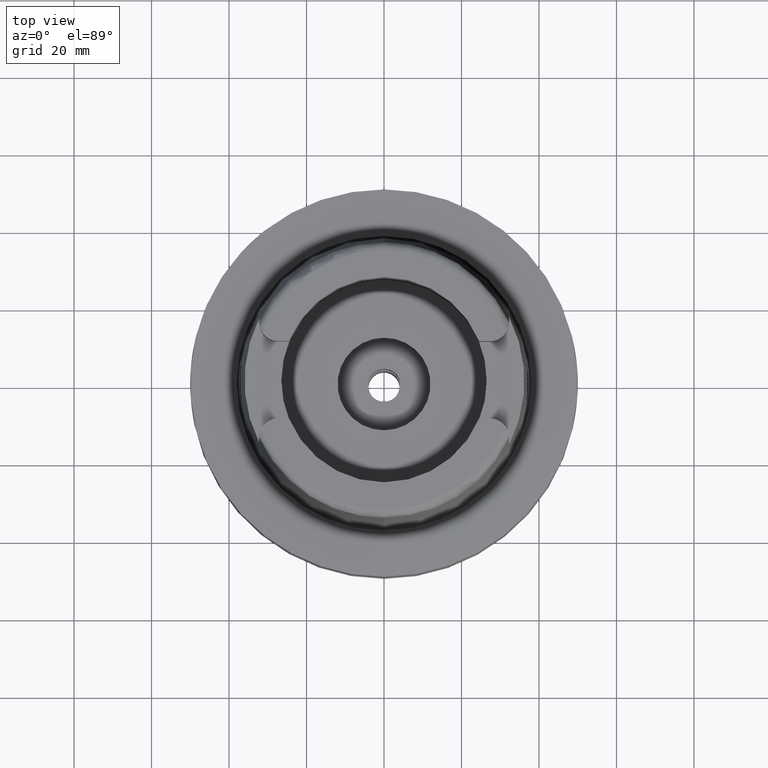
[diagram: clean part render]
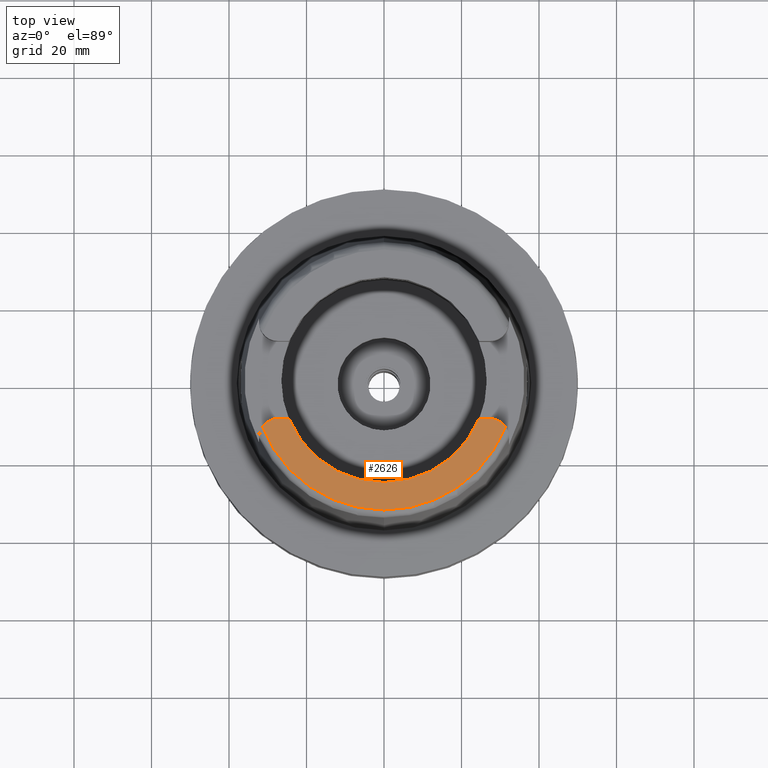
[diagram: same view with one face highlighted and labeled with its STEP entity id]
A machine part, top view. The second image highlights one B-rep face of the part: STEP entity #2626.
In plain terms, the highlighted planar face has unit normal (0, 0, 1).
Its self-contained STEP definition (entity closure, byte-faithful):
#160=DIRECTION('',(-1.E0,1.442003377037E-13,0.E0));
#161=VECTOR('',#160,2.833294842218E0);
#162=CARTESIAN_POINT('',(-2.453670515778E1,-1.001E1,5.E1));
#163=LINE('',#162,#161);
#167=CARTESIAN_POINT('',(-2.737E1,-1.489E1,5.E1));
#168=DIRECTION('',(0.E0,0.E0,-1.E0));
#169=DIRECTION('',(-8.163632566569E-1,5.775387720150E-1,0.E0));
#170=AXIS2_PLACEMENT_3D('',#167,#168,#169);
#175=CARTESIAN_POINT('',(0.E0,0.E0,5.E1));
#176=DIRECTION('',(0.E0,0.E0,1.E0));
#177=DIRECTION('',(-9.259134021805E-1,-3.777358490566E-1,0.E0));
#178=AXIS2_PLACEMENT_3D('',#175,#176,#177);
#183=CARTESIAN_POINT('',(0.E0,0.E0,5.E1));
#184=DIRECTION('',(0.E0,0.E0,1.E0));
#185=DIRECTION('',(0.E0,-1.E0,0.E0));
#186=AXIS2_PLACEMENT_3D('',#183,#184,#185);
#191=CARTESIAN_POINT('',(2.737E1,-1.489E1,5.E1));
#192=DIRECTION('',(0.E0,0.E0,-1.E0));
#193=DIRECTION('',(0.E0,1.E0,0.E0));
#194=AXIS2_PLACEMENT_3D('',#191,#192,#193);
#199=CARTESIAN_POINT('',(0.E0,0.E0,5.E1));
#200=DIRECTION('',(0.E0,0.E0,-1.E0));
#201=DIRECTION('',(9.332215253018E-1,-3.593015233942E-1,0.E0));
#202=AXIS2_PLACEMENT_3D('',#199,#200,#201);
#504=DIRECTION('',(-1.E0,-1.454542536838E-13,0.E0));
#505=VECTOR('',#504,2.833294842218E0);
#506=CARTESIAN_POINT('',(2.737E1,-1.001E1,5.E1));
#507=LINE('',#506,#505);
#2195=CARTESIAN_POINT('',(-3.135385269249E1,-1.207161079257E1,5.E1));
#2196=CARTESIAN_POINT('',(-2.737E1,-1.001E1,5.E1));
#2197=VERTEX_POINT('',#2195);
#2198=VERTEX_POINT('',#2196);
#2199=CARTESIAN_POINT('',(-2.453670515778E1,-1.001E1,5.E1));
#2200=VERTEX_POINT('',#2199);
#2201=CARTESIAN_POINT('',(0.E0,-2.65E1,5.E1));
#2202=VERTEX_POINT('',#2201);
#2203=CARTESIAN_POINT('',(2.453670515778E1,-1.001E1,5.E1));
#2204=VERTEX_POINT('',#2203);
#2205=CARTESIAN_POINT('',(2.737E1,-1.001E1,5.E1));
#2206=VERTEX_POINT('',#2205);
#2207=CARTESIAN_POINT('',(3.135385269249E1,-1.207161079257E1,5.E1));
#2208=VERTEX_POINT('',#2207);
#2607=CARTESIAN_POINT('',(0.E0,0.E0,5.E1));
#2608=DIRECTION('',(0.E0,0.E0,1.E0));
#2609=DIRECTION('',(0.E0,1.E0,0.E0));
#2610=AXIS2_PLACEMENT_3D('',#2607,#2608,#2609);
#2611=PLANE('',#2610);
#2613=ORIENTED_EDGE('',*,*,#2612,.T.);
#2614=ORIENTED_EDGE('',*,*,#2598,.F.);
#2615=ORIENTED_EDGE('',*,*,#2565,.T.);
#2617=ORIENTED_EDGE('',*,*,#2616,.T.);
#2619=ORIENTED_EDGE('',*,*,#2618,.F.);
#2621=ORIENTED_EDGE('',*,*,#2620,.T.);
#2623=ORIENTED_EDGE('',*,*,#2622,.T.);
#2624=EDGE_LOOP('',(#2613,#2614,#2615,#2617,#2619,#2621,#2623));
#2625=FACE_OUTER_BOUND('',#2624,.F.);
#171=CIRCLE('',#170,4.88E0);
#179=CIRCLE('',#178,2.65E1);
#187=CIRCLE('',#186,2.65E1);
#195=CIRCLE('',#194,4.88E0);
#203=CIRCLE('',#202,3.359743838136E1);
#2565=EDGE_CURVE('',#2200,#2202,#179,.T.);
#2598=EDGE_CURVE('',#2200,#2198,#163,.T.);
#2612=EDGE_CURVE('',#2197,#2198,#171,.T.);
#2616=EDGE_CURVE('',#2202,#2204,#187,.T.);
#2618=EDGE_CURVE('',#2206,#2204,#507,.T.);
#2620=EDGE_CURVE('',#2206,#2208,#195,.T.);
#2622=EDGE_CURVE('',#2208,#2197,#203,.T.);
#2626=ADVANCED_FACE('',(#2625),#2611,.T.);